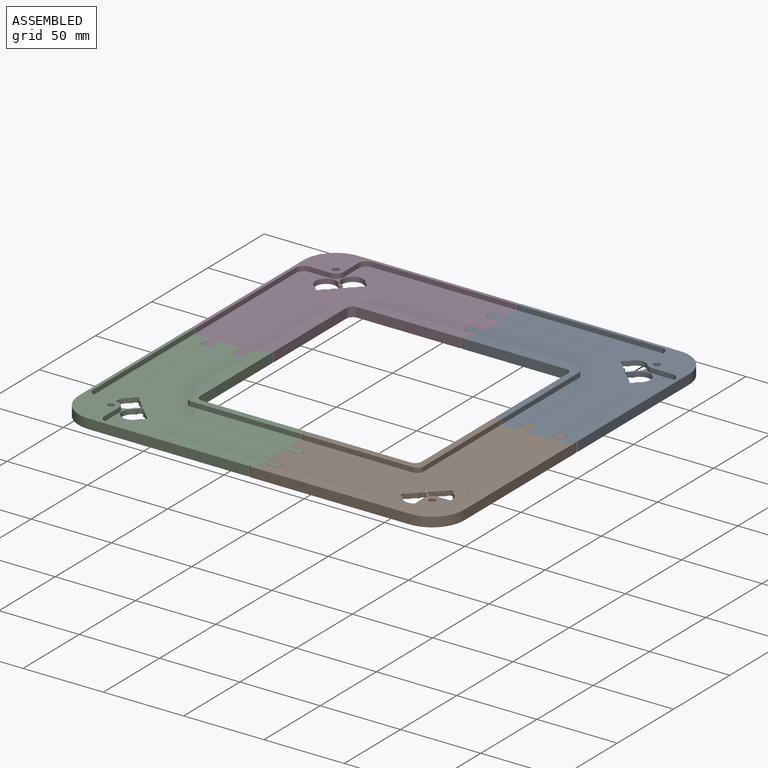
[diagram: assembled view]
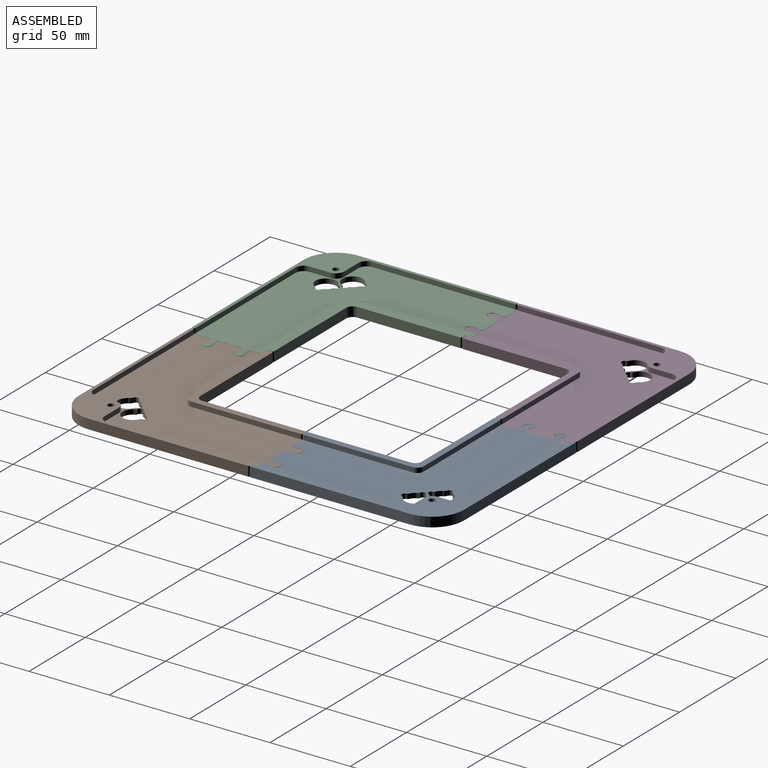
[diagram: assembled view, second angle]
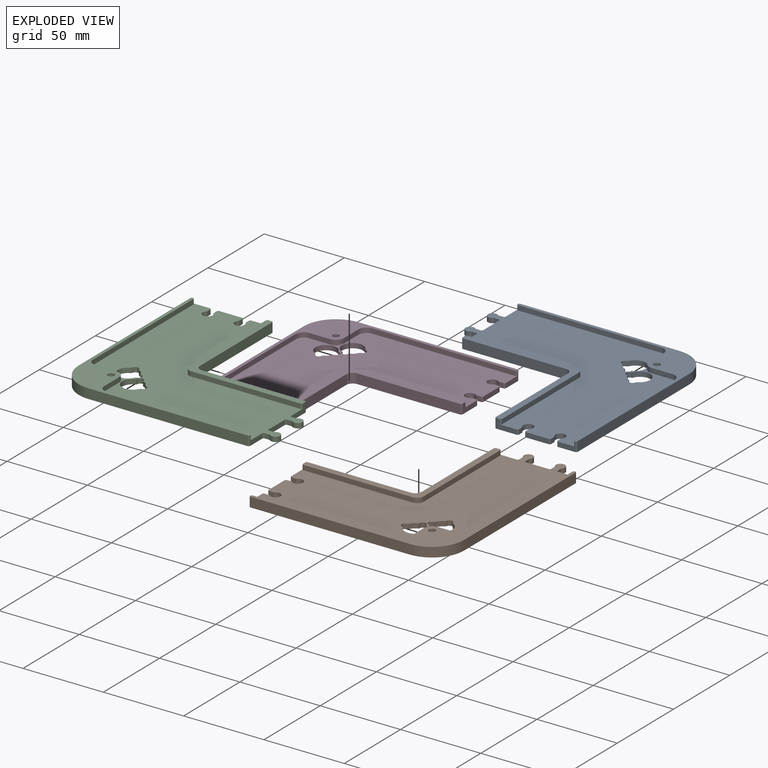
[diagram: exploded view]
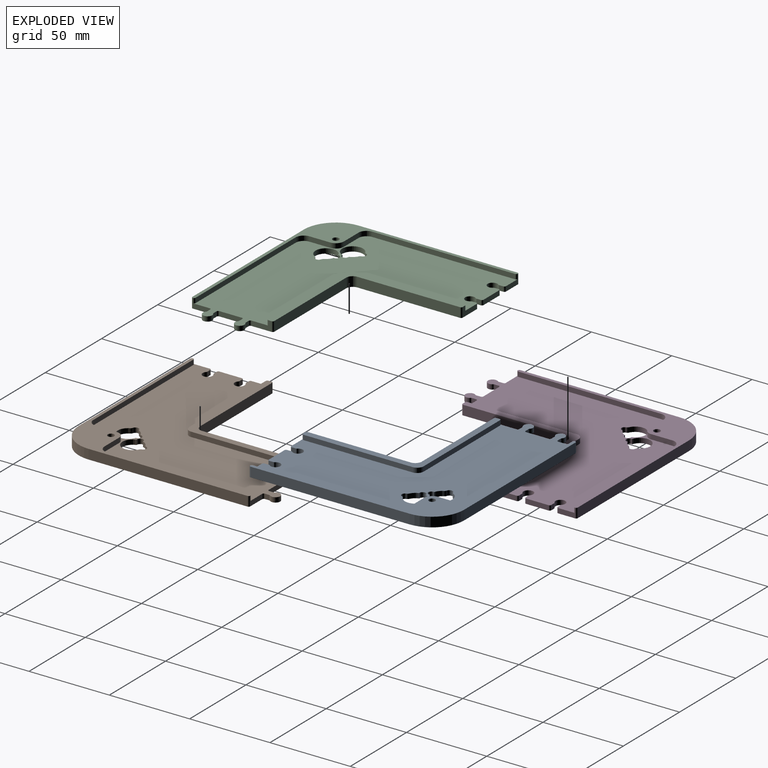
[diagram: exploded view, second angle]
ASSEMBLY  parts=4 mates=3
PART A: 73 faces, bbox 129.1x120x6 mm
  f0: plane 14.1x3mm, normal (-1,0,0), area 42.3mm2, adj f2,f5,f50,f54
  f1: plane 12.55x6mm, normal (-1,0,0), area 43.6mm2, adj f2,f5,f7,f47,f66,f67
  f2: plane 129.15x120mm, normal (0,0,-1), area 9244.6mm2, adj f0,f1,f3,f4,f6,f8,f9,f10
  f3: plane 12.5x6mm, normal (0,-1,0), area 43.5mm2, adj f2,f5,f7,f59,f65,f68
  f4: plane 14x3mm, normal (0,-1,0), area 42mm2, adj f2,f5,f55,f60
  f5: plane 128.15x119mm, normal (0,0,1), area 7766.4mm2, adj f0,f1,f3,f4,f6,f8,f14,f15
  f6: plane 10.55x3mm, normal (-1,0,0), area 31.6mm2, adj f2,f5,f51,f63
  f7: plane 73x73mm, normal (0,0,1), area 567.1mm2, adj f1,f3,f12,f13,f14,f15,f45,f46
  f8: plane 10.5x3mm, normal (0,-1,0), area 31.5mm2, adj f2,f5,f58,f64
  f9: plane 99x6mm, normal (1,0,0), area 594mm2, adj f2,f11,f41,f64
  f10: plane 99x6mm, normal (0,1,0), area 594mm2, adj f2,f11,f41,f63
  f11: plane 120x120mm, normal (0,0,1), area 911.1mm2, adj f9,f10,f16,f17,f18,f19,f32,f41
  f12: plane 64x6mm, normal (0,-1,0), area 384mm2, adj f2,f7,f46,f67
  f13: plane 64x6mm, normal (-1,0,0), area 384mm2, adj f2,f7,f46,f68
  f14: plane 68x3mm, normal (1,0,0), area 204mm2, adj f5,f7,f45,f65
  f15: plane 68x3mm, normal (0,1,0), area 204mm2, adj f5,f7,f45,f66
  f16: plane 89x3mm, normal (0,-1,0), area 267mm2, adj f5,f11,f42,f63
  f17: plane 13x3mm, normal (-1,0,0), area 39mm2, adj f5,f11,f42,f43
  f18: plane 13x3mm, normal (0,-1,0), area 39mm2, adj f5,f11,f43,f44
  f19: plane 89x3mm, normal (-1,0,0), area 267mm2, adj f5,f11,f44,f64
  f20: plane 3x2.58mm, normal (1,0,0), area 7.7mm2, adj f2,f5,f55,f56
  f21: cylinder r=3.05mm len=6.1mm, axis (0,0,-1), area 42.2mm2, adj f2,f5,f56,f57
  f22: plane 3x2.58mm, normal (-1,0,0), area 7.7mm2, adj f2,f5,f57,f58
  f23: plane 3x2.58mm, normal (1,0,0), area 7.7mm2, adj f2,f5,f59,f62
  f24: cylinder r=3.05mm len=6.1mm, axis (0,0,-1), area 42.2mm2, adj f2,f5,f61,f62
  f25: plane 3x2.58mm, normal (-1,0,0), area 7.7mm2, adj f2,f5,f60,f61
  f26: plane 3x2.7mm, normal (0,-1,0), area 8.1mm2, adj f2,f5,f47,f48
  f27: cylinder r=2.9mm len=5.8mm, axis (0,0,-1), area 39.7mm2, adj f2,f5,f48,f49
  f28: plane 3x2.7mm, normal (0,1,0), area 8.1mm2, adj f2,f5,f49,f50
  f29: plane 3x2.7mm, normal (0,-1,0), area 8.1mm2, adj f2,f5,f53,f54
  f30: cylinder r=2.9mm len=5.8mm, axis (0,0,-1), area 39.7mm2, adj f2,f5,f52,f53
  f31: plane 3x2.7mm, normal (0,1,0), area 8.1mm2, adj f2,f5,f51,f52
  f32: cylinder r=2mm len=6mm, axis (0,0,-1), area 75.4mm2, adj f2,f11
  f33: cylinder r=2mm len=3.85mm, axis (0,0,-1), area 15.6mm2, adj f2,f5,f69,f70
  f34: cylinder r=6.5mm len=3.82mm, axis (0,0,-1), area 15.4mm2, adj f2,f5,f35,f70
  f35: cylinder r=2mm len=4mm, axis (0,0,-1), area 20.7mm2, adj f2,f5,f34,f36
  f36: cylinder r=6.5mm len=12.69mm, axis (0,0,-1), area 76.7mm2, adj f2,f5,f35,f69
  f37: cylinder r=2mm len=4mm, axis (0,0,-1), area 20.7mm2, adj f2,f5,f38,f40
  f38: cylinder r=6.5mm len=3.82mm, axis (0,0,-1), area 15.4mm2, adj f2,f5,f37,f72
  f39: cylinder r=2mm len=3.85mm, axis (0,0,-1), area 15.6mm2, adj f2,f5,f71,f72
  f40: cylinder r=6.5mm len=12.69mm, axis (0,0,-1), area 76.7mm2, adj f2,f5,f37,f71
  f41: cylinder r=20mm len=20mm, axis (0,0,1), area 188.5mm2, adj f2,f9,f10,f11
  f42: cylinder r=5mm len=5mm, axis (0,0,1), area 23.6mm2, adj f5,f11,f16,f17
  f43: cylinder r=5mm len=5mm, axis (0,0,-1), area 23.6mm2, adj f5,f11,f17,f18
  f44: cylinder r=5mm len=5mm, axis (0,0,1), area 23.6mm2, adj f5,f11,f18,f19
  f45: cylinder r=4mm len=4mm, axis (0,0,-1), area 18.8mm2, adj f5,f7,f14,f15
  f46: cylinder r=4mm len=6mm, axis (0,0,-1), area 37.7mm2, adj f2,f7,f12,f13
  f47: cylinder r=1mm len=3mm, axis (0,0,1), area 4.7mm2, adj f1,f2,f5,f26
  f48: cylinder r=1mm len=3mm, axis (0,0,-1), area 2.1mm2, adj f2,f5,f26,f27
  f49: cylinder r=1mm len=3mm, axis (0,0,-1), area 2.1mm2, adj f2,f5,f27,f28
  f50: cylinder r=1mm len=3mm, axis (0,0,-1), area 4.7mm2, adj f0,f2,f5,f28
  f51: cylinder r=1mm len=3mm, axis (0,0,-1), area 4.7mm2, adj f2,f5,f6,f31
  f52: cylinder r=1mm len=3mm, axis (0,0,-1), area 2.1mm2, adj f2,f5,f30,f31
  f53: cylinder r=1mm len=3mm, axis (0,0,-1), area 2.1mm2, adj f2,f5,f29,f30
  f54: cylinder r=1mm len=3mm, axis (0,0,1), area 4.7mm2, adj f0,f2,f5,f29
  f55: cylinder r=1mm len=3mm, axis (0,0,-1), area 4.7mm2, adj f2,f4,f5,f20
  f56: cylinder r=1mm len=3mm, axis (0,0,-1), area 2.2mm2, adj f2,f5,f20,f21
  f57: cylinder r=1mm len=3mm, axis (0,0,-1), area 2.2mm2, adj f2,f5,f21,f22
  f58: cylinder r=1mm len=3mm, axis (0,0,-1), area 4.7mm2, adj f2,f5,f8,f22
  f59: cylinder r=1mm len=3mm, axis (0,0,1), area 4.7mm2, adj f2,f3,f5,f23
  f60: cylinder r=1mm len=3mm, axis (0,0,1), area 4.7mm2, adj f2,f4,f5,f25
  f61: cylinder r=1mm len=3mm, axis (0,0,-1), area 2.2mm2, adj f2,f5,f24,f25
  f62: cylinder r=1mm len=3mm, axis (0,0,-1), area 2.2mm2, adj f2,f5,f23,f24
  f63: cylinder r=1mm len=6mm, axis (0,0,-1), area 14.1mm2, adj f2,f5,f6,f10,f11,f16
  f64: cylinder r=1mm len=6mm, axis (0,0,-1), area 14.1mm2, adj f2,f5,f8,f9,f11,f19
  f65: cylinder r=1mm len=3mm, axis (0,0,-1), area 4.7mm2, adj f3,f5,f7,f14
  f66: cylinder r=1mm len=3mm, axis (0,0,1), area 4.7mm2, adj f1,f5,f7,f15
  f67: cylinder r=1mm len=6mm, axis (0,0,1), area 9.4mm2, adj f1,f2,f7,f12
  f68: cylinder r=1mm len=6mm, axis (0,0,1), area 9.4mm2, adj f2,f3,f7,f13
  f69: cylinder r=2mm len=3mm, axis (0,0,-1), area 5mm2, adj f2,f5,f33,f36
  f70: cylinder r=2mm len=3mm, axis (0,0,-1), area 5mm2, adj f2,f5,f33,f34
  f71: cylinder r=2mm len=3mm, axis (0,0,-1), area 5mm2, adj f2,f5,f39,f40
  f72: cylinder r=2mm len=3mm, axis (0,0,-1), area 5mm2, adj f2,f5,f38,f39
PART B: same geometry as A
PART C: same geometry as A
PART D: same geometry as A
PLACE A t=(1.66,-2.86,-3)mm fixed
PLACE B rot(axis=(0,0,-1),90deg) t=(1.66,-2.8,-3)mm
PLACE C rot(axis=(0,0,-1),180deg) t=(1.72,-2.8,-2.9)mm
PLACE D rot(axis=(0,0,1),90deg) t=(1.72,-2.86,-3)mm
MATE slider D.f24 <-> A.f27  axis (0,0,-1) through (-4.58,82.64,-1.5)mm
MATE slider C.f27 <-> B.f24  axis (0,0,-1) through (7.97,-88.3,-1.4)mm
MATE slider A.f24 <-> B.f27  axis (0,0,-1) through (87.16,3.45,-1.5)mm
